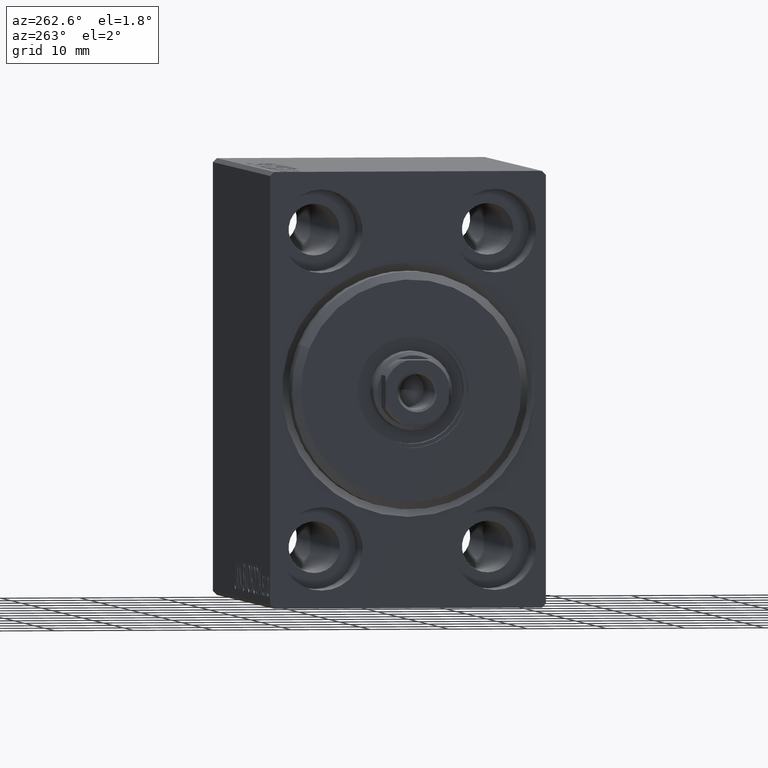
[diagram: clean part render]
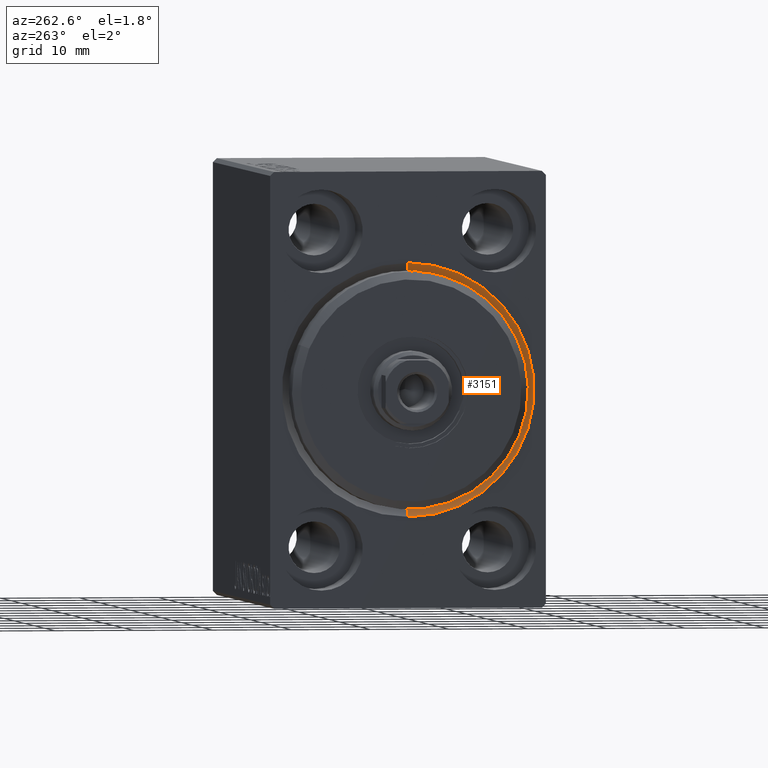
[diagram: same view with one face highlighted and labeled with its STEP entity id]
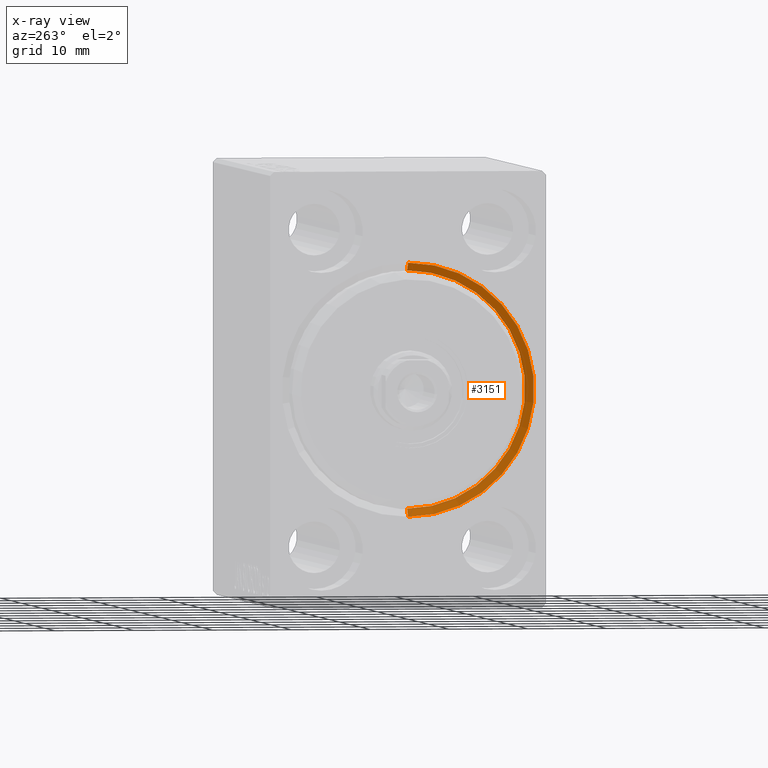
[diagram: x-ray of the same camera — body ghosted, the highlighted face saturated]
A machine part, auxiliary view. The second image highlights one B-rep face of the part: STEP entity #3151.
The next image is the same camera in x-ray: the body ghosted, the highlighted face saturated — about 0% of this face is hidden behind the body in this view.
In plain terms, the highlighted conical surface has half-angle 45 deg.
Its self-contained STEP definition (entity closure, byte-faithful):
#366 = CIRCLE ( 'NONE', #40049, 15.00000000000000000 ) ;
#3151 = ADVANCED_FACE ( 'NONE', ( #43244 ), #15603, .F. ) ;
#3565 = DIRECTION ( 'NONE',  ( 1.000000000000000000, 0.000000000000000000, 0.000000000000000000 ) ) ;
#4902 = VERTEX_POINT ( 'NONE', #41180 ) ;
#6215 = CARTESIAN_POINT ( 'NONE',  ( 0.000000000000000000, 0.000000000000000000, 16.00000000000001421 ) ) ;
#6463 = CARTESIAN_POINT ( 'NONE',  ( 0.000000000000000000, 0.000000000000000000, 0.000000000000000000 ) ) ;
#8077 = DIRECTION ( 'NONE',  ( -0.7071067811865469066, 8.659560562354940254E-17, -0.7071067811865481278 ) ) ;
#8149 = VECTOR ( 'NONE', #31789, 1000.000000000000114 ) ;
#8722 = AXIS2_PLACEMENT_3D ( 'NONE', #6463, #3565, #40419 ) ;
#9344 = DIRECTION ( 'NONE',  ( -1.000000000000000000, 0.000000000000000000, 0.000000000000000000 ) ) ;
#12542 = EDGE_CURVE ( 'NONE', #35873, #14485, #13721, .T. ) ;
#13721 = CIRCLE ( 'NONE', #8722, 16.00000000000001421 ) ;
#14069 = LINE ( 'NONE', #17402, #8149 ) ;
#14485 = VERTEX_POINT ( 'NONE', #42072 ) ;
#15155 = CARTESIAN_POINT ( 'NONE',  ( 1.000000000000013101, 1.836970198721029589E-15, -15.00000000000000000 ) ) ;
#15603 = CONICAL_SURFACE ( 'NONE', #29063, 15.00000000000000000, 0.7853981633974491672 ) ;
#16944 = EDGE_CURVE ( 'NONE', #19826, #35873, #14069, .T. ) ;
#17402 = CARTESIAN_POINT ( 'NONE',  ( 1.000000000000013101, 0.000000000000000000, 15.00000000000000000 ) ) ;
#17921 = CARTESIAN_POINT ( 'NONE',  ( 1.000000000000013101, 0.000000000000000000, 15.00000000000000000 ) ) ;
#19826 = VERTEX_POINT ( 'NONE', #17921 ) ;
#21401 = EDGE_CURVE ( 'NONE', #4902, #19826, #366, .T. ) ;
#21465 = ORIENTED_EDGE ( 'NONE', *, *, #42302, .T. ) ;
#21472 = ORIENTED_EDGE ( 'NONE', *, *, #21401, .F. ) ;
#25335 = DIRECTION ( 'NONE',  ( 0.000000000000000000, 0.000000000000000000, -1.000000000000000000 ) ) ;
#26042 = EDGE_LOOP ( 'NONE', ( #21472, #21465, #35325, #35400 ) ) ;
#29063 = AXIS2_PLACEMENT_3D ( 'NONE', #43465, #32809, #33483 ) ;
#31789 = DIRECTION ( 'NONE',  ( -0.7071067811865469066, 0.000000000000000000, 0.7071067811865481278 ) ) ;
#32636 = VECTOR ( 'NONE', #8077, 1000.000000000000114 ) ;
#32809 = DIRECTION ( 'NONE',  ( -1.000000000000000000, 0.000000000000000000, 0.000000000000000000 ) ) ;
#33483 = DIRECTION ( 'NONE',  ( 0.000000000000000000, 0.000000000000000000, 1.000000000000000000 ) ) ;
#35325 = ORIENTED_EDGE ( 'NONE', *, *, #12542, .F. ) ;
#35400 = ORIENTED_EDGE ( 'NONE', *, *, #16944, .F. ) ;
#35873 = VERTEX_POINT ( 'NONE', #6215 ) ;
#39518 = CARTESIAN_POINT ( 'NONE',  ( 1.000000000000013101, 0.000000000000000000, 0.000000000000000000 ) ) ;
#40049 = AXIS2_PLACEMENT_3D ( 'NONE', #39518, #9344, #25335 ) ;
#40419 = DIRECTION ( 'NONE',  ( 0.000000000000000000, 0.000000000000000000, -1.000000000000000000 ) ) ;
#41180 = CARTESIAN_POINT ( 'NONE',  ( 1.000000000000013101, 1.836970198721029589E-15, -15.00000000000000000 ) ) ;
#41802 = LINE ( 'NONE', #15155, #32636 ) ;
#42072 = CARTESIAN_POINT ( 'NONE',  ( 0.000000000000000000, 1.959434878635766709E-15, -16.00000000000001421 ) ) ;
#42302 = EDGE_CURVE ( 'NONE', #4902, #14485, #41802, .T. ) ;
#43244 = FACE_OUTER_BOUND ( 'NONE', #26042, .T. ) ;
#43465 = CARTESIAN_POINT ( 'NONE',  ( 1.000000000000013101, 0.000000000000000000, 0.000000000000000000 ) ) ;